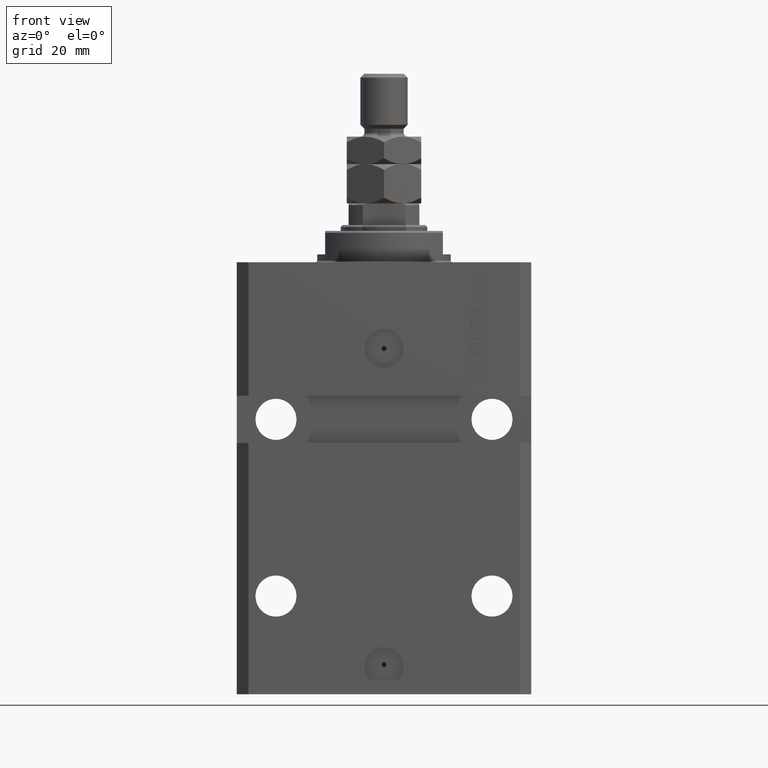
[diagram: clean part render]
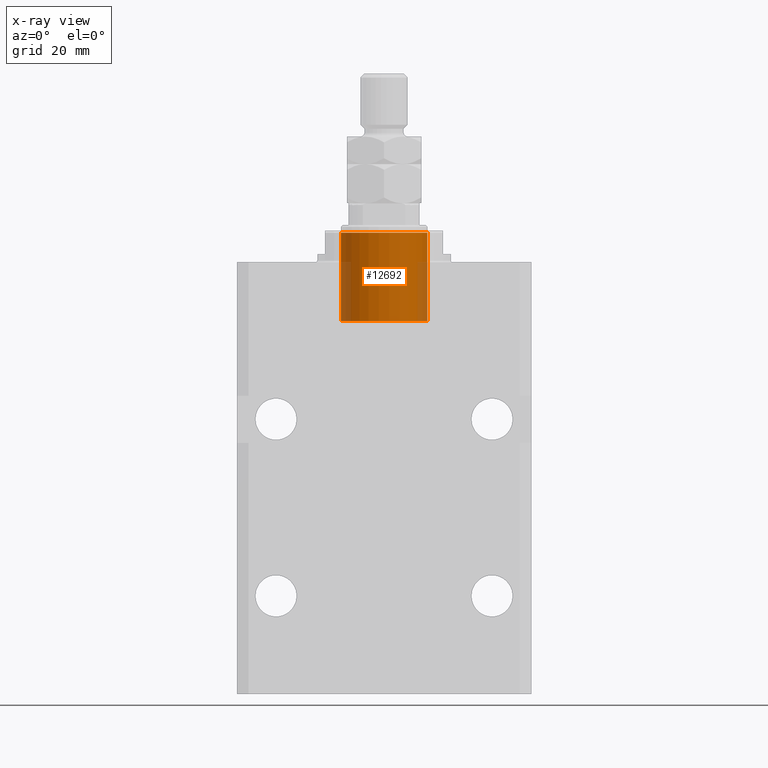
[diagram: x-ray — body ghosted, one internal face saturated and labeled with its STEP entity id]
A machine part, front view, then the same camera in x-ray: the body is ghosted and one INTERNAL B-rep face — a face not visible from any outside direction — is saturated and labeled: STEP entity #12692.
In plain terms, the highlighted cylindrical surface (partial cylindrical patch) has radius 11 mm, axis along (0, -0, 1).
Its self-contained STEP definition (entity closure, byte-faithful):
#871 = CARTESIAN_POINT ( 'NONE',  ( 11.00000000000000000, 1.347111479062088405E-15, 15.00000000000000000 ) ) ;
#1795 = CYLINDRICAL_SURFACE ( 'NONE', #41010, 11.00000000000000000 ) ;
#3213 = EDGE_CURVE ( 'NONE', #48128, #7727, #33588, .T. ) ;
#6339 = DIRECTION ( 'NONE',  ( -0.000000000000000000, -0.000000000000000000, -1.000000000000000000 ) ) ;
#7727 = VERTEX_POINT ( 'NONE', #48923 ) ;
#12399 = VECTOR ( 'NONE', #6339, 1000.000000000000000 ) ;
#12692 = ADVANCED_FACE ( 'NONE', ( #47579 ), #1795, .F. ) ;
#12819 = AXIS2_PLACEMENT_3D ( 'NONE', #18571, #21837, #22325 ) ;
#16300 = DIRECTION ( 'NONE',  ( -0.000000000000000000, -0.000000000000000000, -1.000000000000000000 ) ) ;
#16673 = EDGE_CURVE ( 'NONE', #48128, #31078, #35128, .T. ) ;
#16930 = VERTEX_POINT ( 'NONE', #20477 ) ;
#18571 = CARTESIAN_POINT ( 'NONE',  ( 0.000000000000000000, 0.000000000000000000, -7.500000000000000000 ) ) ;
#20477 = CARTESIAN_POINT ( 'NONE',  ( -11.00000000000000000, 0.000000000000000000, -7.500000000000000000 ) ) ;
#21837 = DIRECTION ( 'NONE',  ( 0.000000000000000000, 0.000000000000000000, -1.000000000000000000 ) ) ;
#22146 = EDGE_CURVE ( 'NONE', #31078, #16930, #27191, .T. ) ;
#22325 = DIRECTION ( 'NONE',  ( -1.000000000000000000, 0.000000000000000000, 0.000000000000000000 ) ) ;
#24850 = ORIENTED_EDGE ( 'NONE', *, *, #3213, .F. ) ;
#26527 = CARTESIAN_POINT ( 'NONE',  ( 0.000000000000000000, 0.000000000000000000, 15.00000000000000000 ) ) ;
#27034 = DIRECTION ( 'NONE',  ( 0.000000000000000000, 0.000000000000000000, -1.000000000000000000 ) ) ;
#27191 = CIRCLE ( 'NONE', #12819, 11.00000000000000000 ) ;
#28090 = ORIENTED_EDGE ( 'NONE', *, *, #46246, .F. ) ;
#31078 = VERTEX_POINT ( 'NONE', #31198 ) ;
#31198 = CARTESIAN_POINT ( 'NONE',  ( 11.00000000000000000, 1.347111479062088405E-15, -7.500000000000000000 ) ) ;
#31993 = AXIS2_PLACEMENT_3D ( 'NONE', #26527, #27034, #49311 ) ;
#32323 = DIRECTION ( 'NONE',  ( -1.000000000000000000, 0.000000000000000000, 0.000000000000000000 ) ) ;
#33588 = CIRCLE ( 'NONE', #31993, 11.00000000000000000 ) ;
#34810 = EDGE_LOOP ( 'NONE', ( #24850, #37760, #45029, #28090 ) ) ;
#35128 = LINE ( 'NONE', #871, #12399 ) ;
#35808 = VECTOR ( 'NONE', #37389, 1000.000000000000000 ) ;
#37314 = CARTESIAN_POINT ( 'NONE',  ( 11.00000000000000000, 1.347111479062088405E-15, 15.00000000000000000 ) ) ;
#37389 = DIRECTION ( 'NONE',  ( -0.000000000000000000, -0.000000000000000000, -1.000000000000000000 ) ) ;
#37760 = ORIENTED_EDGE ( 'NONE', *, *, #16673, .T. ) ;
#41010 = AXIS2_PLACEMENT_3D ( 'NONE', #46838, #16300, #32323 ) ;
#41384 = CARTESIAN_POINT ( 'NONE',  ( -11.00000000000000000, 0.000000000000000000, 15.00000000000000000 ) ) ;
#45029 = ORIENTED_EDGE ( 'NONE', *, *, #22146, .T. ) ;
#46246 = EDGE_CURVE ( 'NONE', #7727, #16930, #48663, .T. ) ;
#46838 = CARTESIAN_POINT ( 'NONE',  ( 0.000000000000000000, 0.000000000000000000, 15.00000000000000000 ) ) ;
#47579 = FACE_OUTER_BOUND ( 'NONE', #34810, .T. ) ;
#48128 = VERTEX_POINT ( 'NONE', #37314 ) ;
#48663 = LINE ( 'NONE', #41384, #35808 ) ;
#48923 = CARTESIAN_POINT ( 'NONE',  ( -11.00000000000000000, 0.000000000000000000, 15.00000000000000000 ) ) ;
#49311 = DIRECTION ( 'NONE',  ( -1.000000000000000000, 0.000000000000000000, 0.000000000000000000 ) ) ;